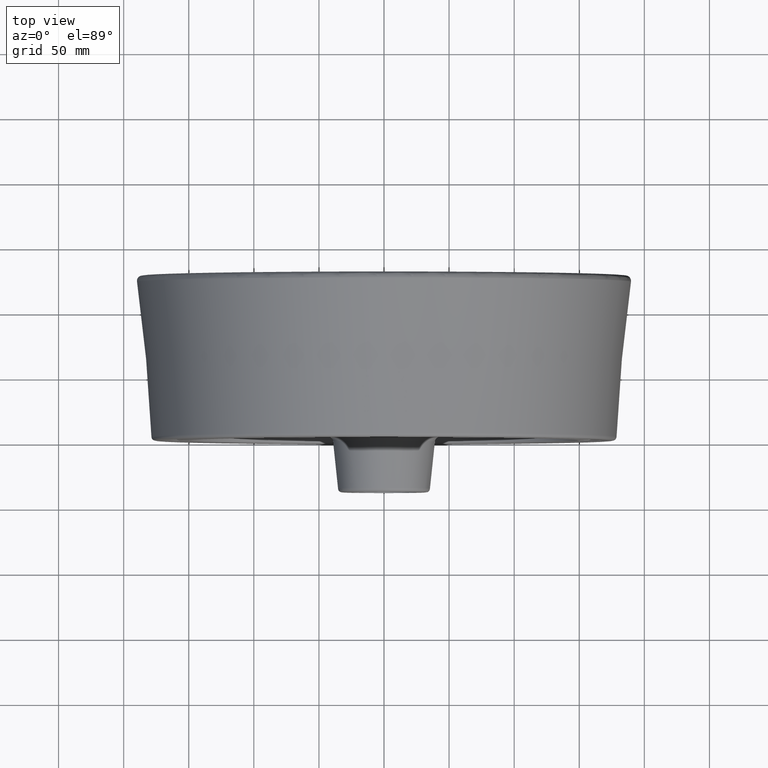
[diagram: clean part render]
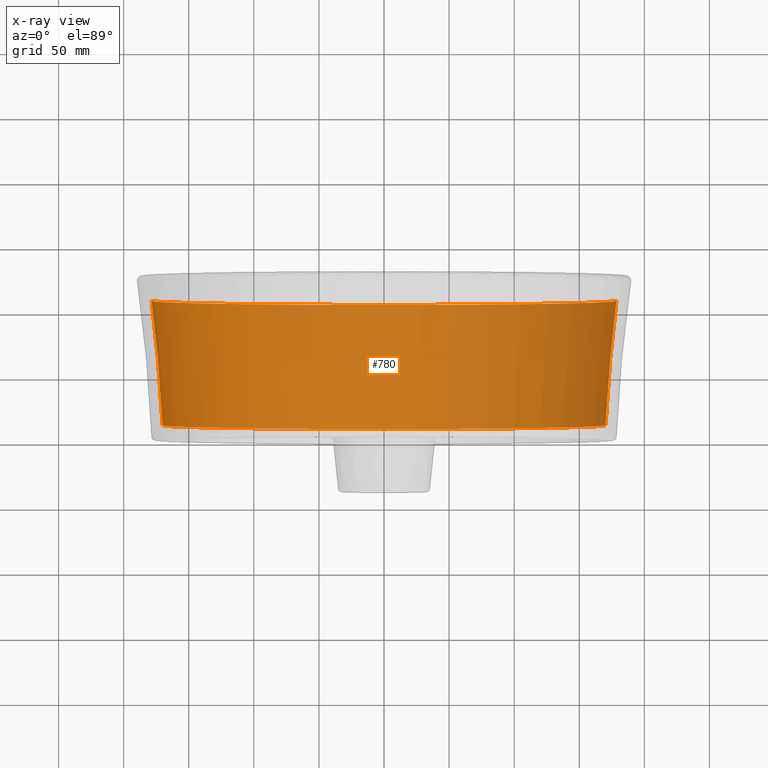
[diagram: x-ray — body ghosted, one internal face saturated and labeled with its STEP entity id]
A machine part, top view, then the same camera in x-ray: the body is ghosted and one INTERNAL B-rep face — a face not visible from any outside direction — is saturated and labeled: STEP entity #780.
In plain terms, the highlighted face is a SurfaceOfRevolution surface.
Its self-contained STEP definition (entity closure, byte-faithful):
#173=SURFACE_OF_REVOLUTION('',#2146,#193);
#193=AXIS1_PLACEMENT('',#10184,#7383);
#780=ADVANCED_FACE('',(#1348),#173,.T.);
#1348=FACE_OUTER_BOUND('',#1765,.F.);
#1765=EDGE_LOOP('',(#2950,#2951,#2952,#2953));
#2144=B_SPLINE_CURVE_WITH_KNOTS('',3,(#10172,#10173,#10174,#10175),
 .UNSPECIFIED.,.F.,.F.,(4,4),(0.,1.),.UNSPECIFIED.);
#2145=B_SPLINE_CURVE_WITH_KNOTS('',3,(#10176,#10177,#10178,#10179),
 .UNSPECIFIED.,.F.,.F.,(4,4),(0.,1.),.UNSPECIFIED.);
#2146=B_SPLINE_CURVE_WITH_KNOTS('',3,(#10180,#10181,#10182,#10183),
 .UNSPECIFIED.,.F.,.F.,(4,4),(0.,1.),.UNSPECIFIED.);
#2950=ORIENTED_EDGE('',*,*,#5122,.T.);
#2951=ORIENTED_EDGE('',*,*,#5123,.T.);
#2952=ORIENTED_EDGE('',*,*,#5119,.F.);
#2953=ORIENTED_EDGE('',*,*,#5124,.F.);
#4474=VERTEX_POINT('',#10164);
#4475=VERTEX_POINT('',#10165);
#4476=VERTEX_POINT('',#10170);
#4477=VERTEX_POINT('',#10171);
#5119=EDGE_CURVE('',#4474,#4475,#5967,.T.);
#5122=EDGE_CURVE('',#4476,#4477,#5970,.T.);
#5123=EDGE_CURVE('',#4477,#4475,#2144,.T.);
#5124=EDGE_CURVE('',#4476,#4474,#2145,.T.);
#5967=CIRCLE('',#6458,170.1267583717);
#5970=CIRCLE('',#6462,178.5532026877);
#6458=AXIS2_PLACEMENT_3D('',#10163,#7373,#7374);
#6462=AXIS2_PLACEMENT_3D('',#10169,#7381,#7382);
#7373=DIRECTION('',(0.,1.,0.));
#7374=DIRECTION('',(1.,0.,2.874484370934E-012));
#7381=DIRECTION('',(0.,1.,0.));
#7382=DIRECTION('',(1.,0.,3.065059691457E-012));
#7383=DIRECTION('',(0.,-1.,0.));
#10163=CARTESIAN_POINT('',(0.,11.76068164533,0.));
#10164=CARTESIAN_POINT('',(170.1267583717,11.76068164533,4.890267080171E-010));
#10165=CARTESIAN_POINT('',(-170.1267583717,11.76068164533,1.353852553515E-010));
#10169=CARTESIAN_POINT('',(1.097490807607E-014,107.2885809431,0.));
#10170=CARTESIAN_POINT('',(178.5532026877,107.2885809431,5.472762243386E-010));
#10171=CARTESIAN_POINT('',(-178.5532026877,107.2885809431,5.019934655843E-010));
#10172=CARTESIAN_POINT('',(-178.5532026877,107.288580943,-1.128958038166E-011));
#10173=CARTESIAN_POINT('',(-174.363433994,75.50137288013,-1.129092791404E-011));
#10174=CARTESIAN_POINT('',(-171.9273215932,43.57321294553,-8.838663510904E-011));
#10175=CARTESIAN_POINT('',(-170.1267583717,11.76068164533,-8.838721421434E-011));
#10176=CARTESIAN_POINT('',(178.5532026877,107.288580943,1.131714166824E-011));
#10177=CARTESIAN_POINT('',(174.363433994,75.50137288013,1.131714166824E-011));
#10178=CARTESIAN_POINT('',(171.9273215932,43.57321294553,8.839073917244E-011));
#10179=CARTESIAN_POINT('',(170.1267583717,11.76068164533,8.839073917244E-011));
#10180=CARTESIAN_POINT('',(178.5532026877,107.2885809431,0.));
#10181=CARTESIAN_POINT('',(174.363433994,75.50137288015,0.));
#10182=CARTESIAN_POINT('',(171.9273215932,43.57321294553,0.));
#10183=CARTESIAN_POINT('',(170.1267583717,11.76068164533,0.));
#10184=CARTESIAN_POINT('',(1.28691165348E-014,117.6001715178,0.));